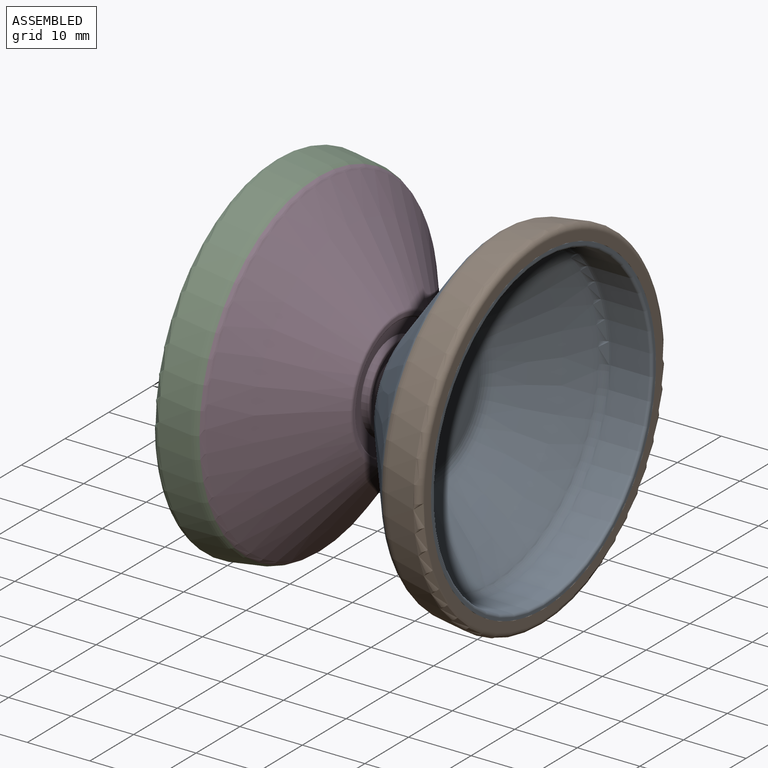
[diagram: assembled view]
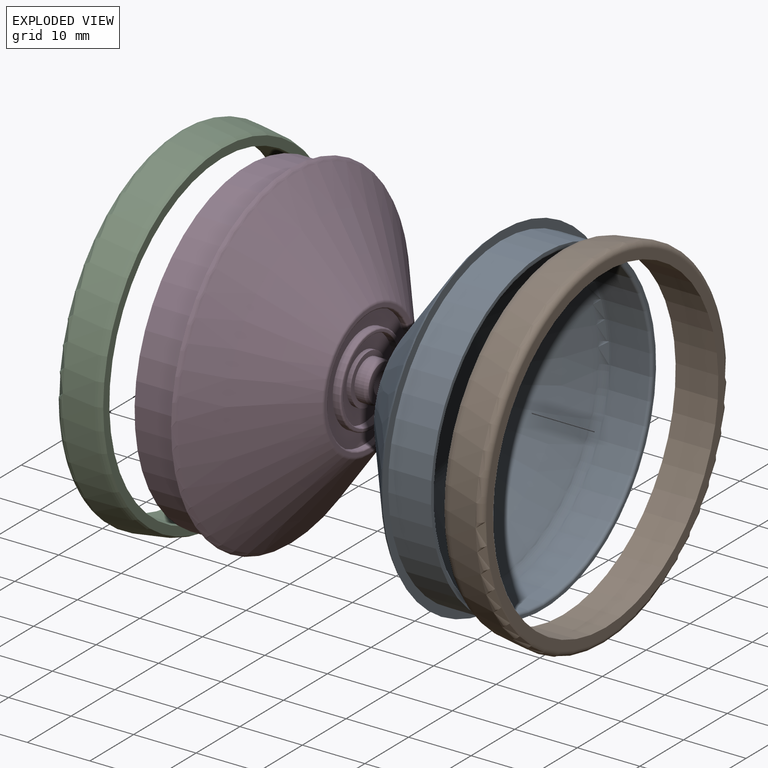
[diagram: exploded view]
GUIDED TOUR — MATED ASSEMBLY (Onshape document 5a9b9435372ab78102ca49b9, AutoMate assembly 5a9b9435372ab78102ca49b9_69f831226bb6e283e41c74c1_a57fb36722813cca9c23379e_default)

This assembly has 4 components, labeled P0..P3 below (a component is one placed occurrence of a part; the same part can appear more than once), held together by 3 mates. A mate is a constraint between two components; its type names the relative motion it leaves free:
  FASTENED — locks the two components together rigidly (no relative motion),
  REVOLUTE — leaves rotation about the listed axis free (a hinge).
Axis/direction vectors are unit vectors and 'through' points are millimeter coordinates, both in the assembly's world frame.

MATES
  1. REVOLUTE "Revolute 2": P1 <-> P0, axis (1.000, 0.000, 0.000) through (63.01, 15.94, -5.77) mm
  2. FASTENED "Fastened 1": P2 <-> P3, direction (-1.000, 0.000, 0.000) through (26.95, 15.94, -5.77) mm
  3. REVOLUTE "Revolute 1": P0 <-> P3, axis (-1.000, 0.000, 0.000) through (44.92, 15.94, -5.77) mm

ASSEMBLY ORDER
  1. P0 — the base component [order heuristic]
  2. P1 [order heuristic]
  3. P3 [order heuristic]
  4. P2 [order heuristic]
Order-tag legend:
  [order heuristic] — this assembly is geometrically interlocked (no collision-free removal order exists), so components are listed in mate-graph order; insertion feasibility is not verified.

Of the 4 components, 4 carry the full construction recipe — the FeatureScript program that regenerates the part's solid from scratch; the rest are supplied as boundary geometry only.
Each toured component is shown spotlighted twice — in the assembled view, then in the exploded view, where a leader line traces a displaced component back to its assembled socket (saturated green if recipe-attached, orange if geometry-only; every other component desaturated gray) — followed by its recipe or geometry summary and the mates that hold it.
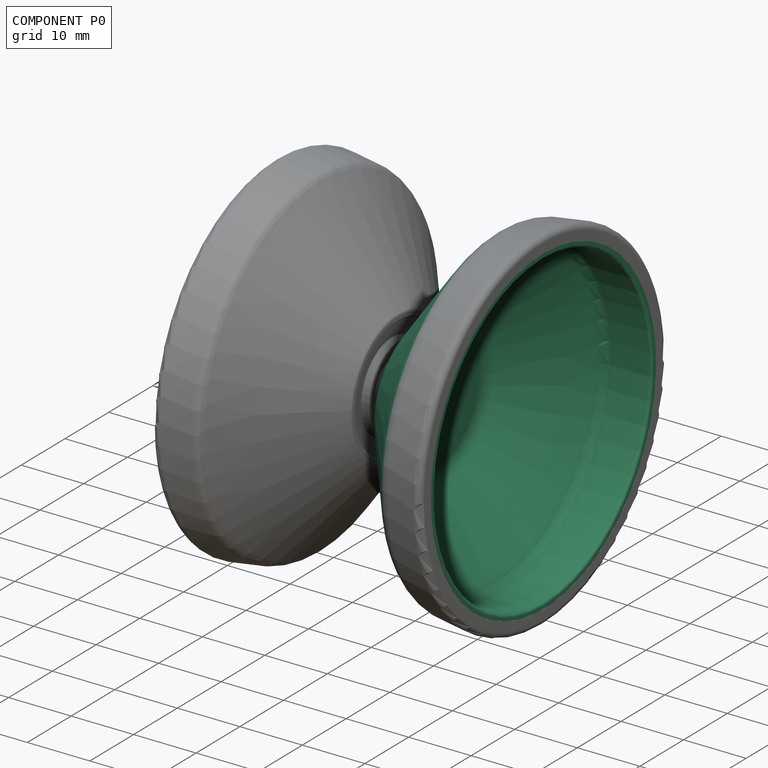
[diagram: component P0 — assembled]
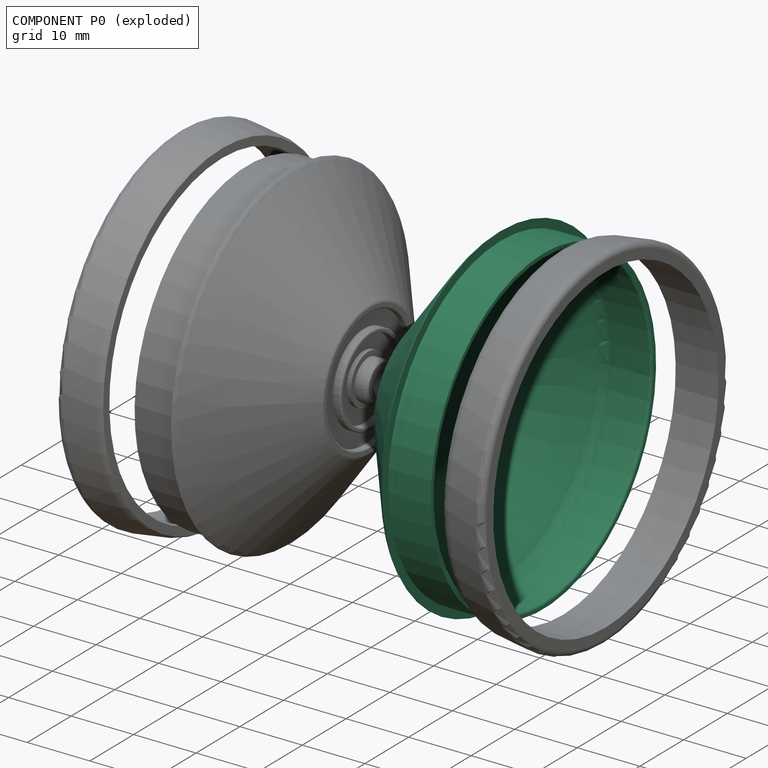
[diagram: component P0 — exploded]
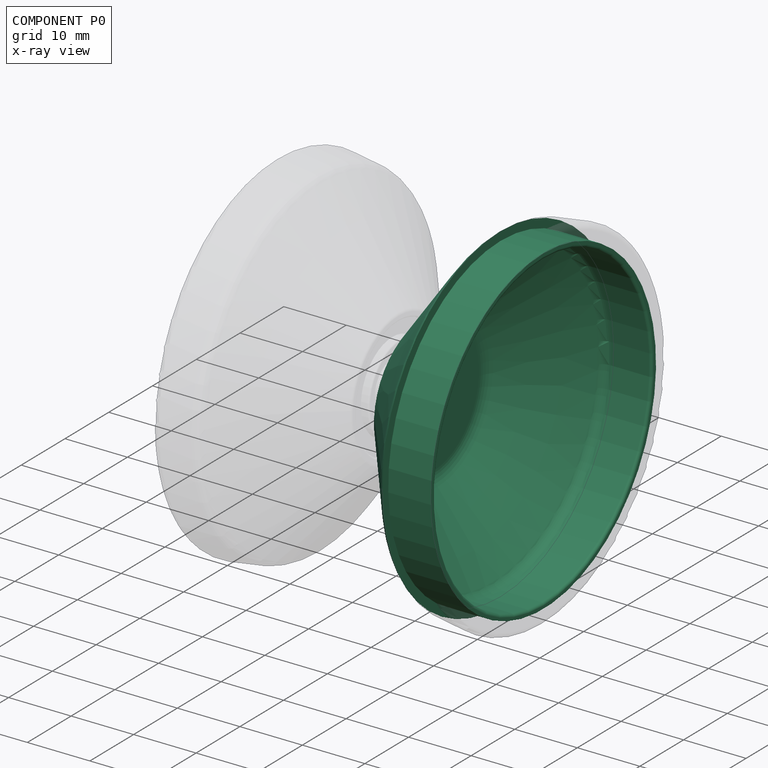
[diagram: component P0 — x-ray view]
COMPONENT P0 — recipe-attached (CADFS 00145918, mesh-verified: the recipe's output STEP matches this component's geometry to below the mesh-comparison resolution (tessellation chordal tolerance ~0.12 mm)).
Held by: REVOLUTE mate "Revolute 2" to P1; REVOLUTE mate "Revolute 1" to P3.
Construction recipe (FeatureScript — the CAD program that rebuilds this solid; sketch coordinates are in the units given by the * unit suffixes, e.g. mm):

FeatureScript 2279;
import(path : "onshape/std/geometry.fs", version : "2279.0");
import(path : "onshape/std/common.fs", version : "2279.0");
const mm = millimeter;
const VERTEX = EntityType.VERTEX;
const EDGE = EntityType.EDGE;
const FACE = EntityType.FACE;
const BODY = EntityType.BODY;
function v(x, y){return vector(x, y);}
function OD(order){return orderDisambiguation(order);}
function OSD(set){return originalSetDisambiguation(set);}
function TD(topology){return topologyDisambiguation(topology);}
function TDD(query){return trueDependencyDisambiguation(query);}
function sQuery(a, b, c) {return sketchEntityQuery(a, b, c);}

annotation { "Feature Type Name" : "Feature", "Feature Type Description" : "" }
export const myFeature = defineFeature(function(context is Context, id is Id, definition is map)
    precondition{}
    {
        {
            var Q0;
            Q0=qCreatedBy(makeId("Front.planeOp"),FACE);
            var sketch = newSketch(context, id + "F0", { "sketchPlane" : qUnion([Q0])});
            skArc(sketch, "E0", {"start": v(2.42, 9.65) * mm, "mid": v(2.6, 9.73) * mm, "end": v(2.67, 9.9) * mm});
            skArc(sketch, "E1", {"start": v(2.93, 6.9) * mm, "mid": v(2.85, 7.08) * mm, "end": v(2.67, 7.15) * mm});
            skArc(sketch, "E2", {"start": v(2.8, 6.5) * mm, "mid": v(2.9, 6.53) * mm, "end": v(2.93, 6.62) * mm});
            skLineSegment(sketch, "E3", {"start": v(1.67, 4) * mm, "end": v(1.67, 6.5) * mm});
            skLineSegment(sketch, "E4", {"start": v(4.49, 1.75) * mm, "end": v(4.49, 2.97) * mm});
            skLineSegment(sketch, "E5", {"start": v(2.37, 3.19) * mm, "end": v(2.37, 4) * mm});
            skLineSegment(sketch, "E6", {"start": v(4.37, 3.05) * mm, "end": v(3.88, 3.18) * mm});
            skLineSegment(sketch, "E7", {"start": v(2.37, 3.19) * mm, "end": v(3.84, 3.19) * mm});
            skLineSegment(sketch, "E8", {"start": v(1.67, 7.15) * mm, "end": v(2.67, 7.15) * mm});
            skArc(sketch, "E9", {"start": v(3.88, 3.18) * mm, "mid": v(3.86, 3.18) * mm, "end": v(3.84, 3.19) * mm});
            skLineSegment(sketch, "E10", {"start": v(4.49, 1.75) * mm, "end": v(1.65, 1.75) * mm});
            skLineSegment(sketch, "E11", {"start": v(1.65, 1.75) * mm, "end": v(1.58, 0) * mm});
            skArc(sketch, "E12", {"start": v(4.49, 2.97) * mm, "mid": v(4.44, 3.02) * mm, "end": v(4.37, 3.05) * mm});
            skLineSegment(sketch, "E13", {"start": v(1.58, 0) * mm, "end": v(0.8, 0) * mm});
            skLineSegment(sketch, "E14", {"start": v(-20.28, 0) * mm, "end": v(-20.28, 27.66) * mm});
            skLineSegment(sketch, "E15", {"start": v(-17.01, 25.73) * mm, "end": v(-10.18, 25.73) * mm});
            skLineSegment(sketch, "E16", {"start": v(1.67, 9.65) * mm, "end": v(1.67, 7.15) * mm});
            skLineSegment(sketch, "E17", {"start": v(1.67, 9.65) * mm, "end": v(2.42, 9.65) * mm});
            skLineSegment(sketch, "E18", {"start": v(2.93, 6.9) * mm, "end": v(2.93, 6.62) * mm});
            skLineSegment(sketch, "E19", {"start": v(2.8, 6.5) * mm, "end": v(1.67, 6.5) * mm});
            skLineSegment(sketch, "E20", {"start": v(1.67, 4) * mm, "end": v(2.37, 4) * mm});
            skPoint(sketch, "E21.visualSharp", {"position": v(-17.01, 25.44) * mm});
            skLineSegment(sketch, "E22", {"start": v(-11.26, 27.54) * mm, "end": v(-15.92, 28.2) * mm});
            skLineSegment(sketch, "E23", {"start": v(-17.01, 27.25) * mm, "end": v(-17.01, 25.73) * mm});
            skPoint(sketch, "E24.visualSharp", {"position": v(-17.01, 28.35) * mm});
            skArc(sketch, "E24.filletArc", {"start": v(-15.92, 28.2) * mm, "mid": v(-16.68, 27.97) * mm, "end": v(-17.01, 27.25) * mm});
            skPoint(sketch, "E25.visualSharp", {"position": v(-10.18, 27.4) * mm});
            skArc(sketch, "E25.filletArc", {"start": v(-9.54, 26.52) * mm, "mid": v(-10.3, 27.2) * mm, "end": v(-11.26, 27.54) * mm});
            skLineSegment(sketch, "E26", {"start": v(-10.18, 25.73) * mm, "end": v(-10.18, 27.14) * mm});
            skLineSegment(sketch, "E27", {"start": v(-10.5, 24.8) * mm, "end": v(-16.57, 24.8) * mm});
            skLineSegment(sketch, "E28", {"start": v(-17.01, 25.73) * mm, "end": v(-17.01, 25.25) * mm});
            skPoint(sketch, "E29.visualSharp", {"position": v(-17.01, 24.8) * mm});
            skArc(sketch, "E29.filletArc", {"start": v(-17.01, 25.25) * mm, "mid": v(-16.88, 24.93) * mm, "end": v(-16.57, 24.8) * mm});
            skLineSegment(sketch, "E30", {"start": v(2.67, 9.9) * mm, "end": v(2.67, 10.43) * mm});
            skLineSegment(sketch, "E31", {"start": v(2.53, 10.85) * mm, "end": v(-9.54, 26.52) * mm});
            skPoint(sketch, "E32.visualSharp", {"position": v(2.67, 10.67) * mm});
            skArc(sketch, "E32.filletArc", {"start": v(2.67, 10.43) * mm, "mid": v(2.64, 10.65) * mm, "end": v(2.53, 10.85) * mm});
            skLineSegment(sketch, "E33", {"start": v(-8.91, 24.03) * mm, "end": v(-0.08, 12.57) * mm});
            skLineSegment(sketch, "E34", {"start": v(0.63, 10.5) * mm, "end": v(0.63, 0) * mm});
            skPoint(sketch, "E34.endSnap0", {"position": v(1.18, 0) * mm});
            skLineSegment(sketch, "E35", {"start": v(0.63, 0) * mm, "end": v(0.8, 0) * mm});
            skPoint(sketch, "E36.visualSharp", {"position": v(0.63, 11.65) * mm});
            skArc(sketch, "E36.filletArc", {"start": v(0.63, 10.5) * mm, "mid": v(0.45, 11.6) * mm, "end": v(-0.08, 12.57) * mm});
            skPoint(sketch, "E37.visualSharp", {"position": v(-9.51, 24.8) * mm});
            skArc(sketch, "E37.filletArc", {"start": v(-8.91, 24.03) * mm, "mid": v(-9.61, 24.6) * mm, "end": v(-10.5, 24.8) * mm});
            skSolve(sketch);
        }
        {
            var Q0;
            Q0=makeQuery(id+"F0.imprint","IMPRINT",FACE,{"disambiguationData":[TD([[makeQuery(id+"F0.imprint","IMPRINT",EDGE,{"derivedFrom":sQuery(id+"F0.wireOp",EDGE,"E0")}),1.0]])]});
            var Q1;
            Q1=sQuery(id+"F0.wireOp",EDGE,"E13");
            revolve(context, id + "F1", {"entities" : qUnion([Q0]), "axis" : qUnion([Q1]), "revolveType" : RevolveType.FULL});
        }
    });
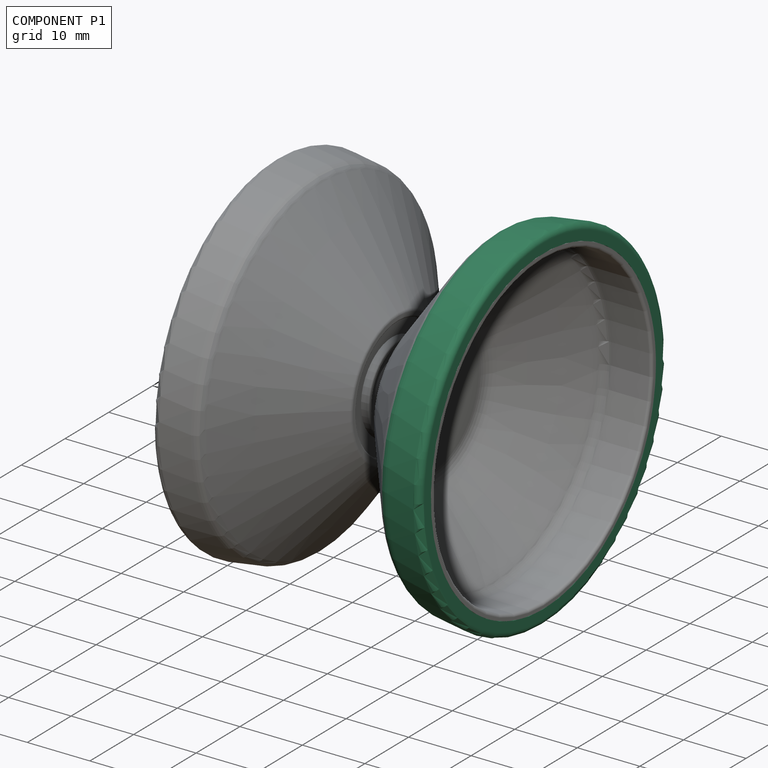
[diagram: component P1 — assembled]
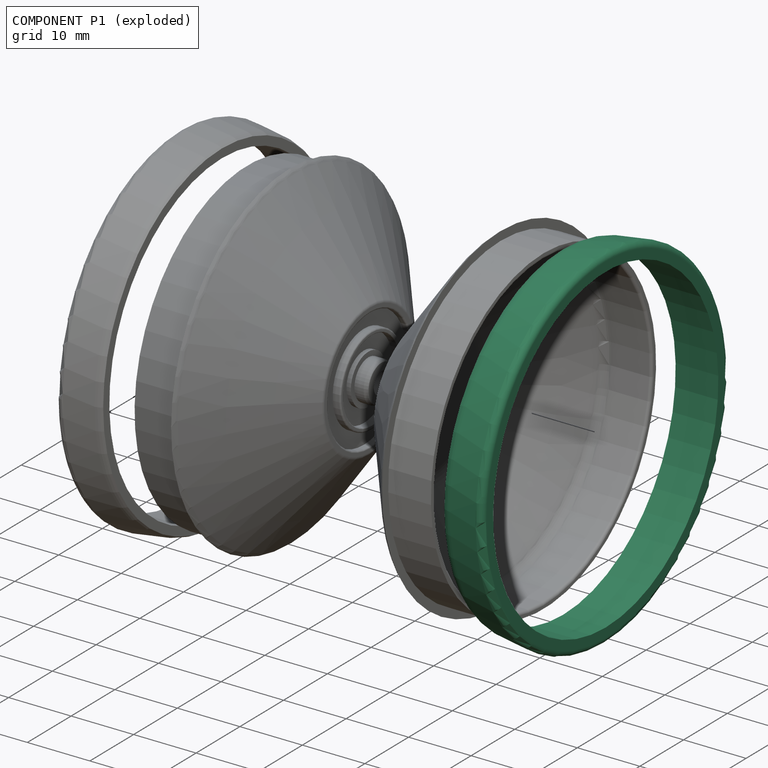
[diagram: component P1 — exploded]
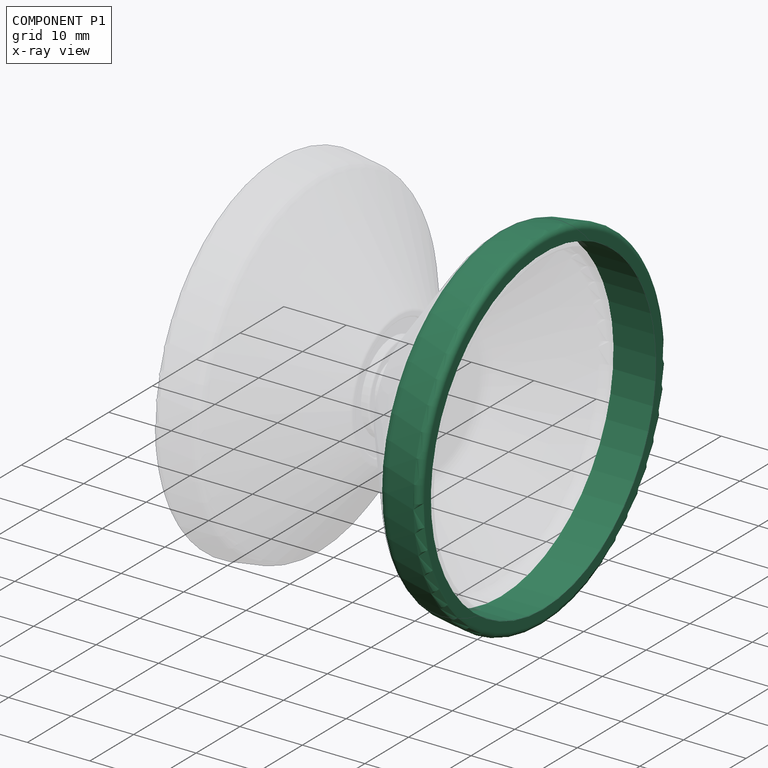
[diagram: component P1 — x-ray view]
COMPONENT P1 — recipe-attached (CADFS 00145919, mesh-verified: the recipe's output STEP matches this component's geometry to below the mesh-comparison resolution (tessellation chordal tolerance ~0.12 mm)).
Held by: REVOLUTE mate "Revolute 2" to P0.
Construction recipe (FeatureScript — the CAD program that rebuilds this solid; sketch coordinates are in the units given by the * unit suffixes, e.g. mm):

FeatureScript 2279;
import(path : "onshape/std/geometry.fs", version : "2279.0");
import(path : "onshape/std/common.fs", version : "2279.0");
const mm = millimeter;
const VERTEX = EntityType.VERTEX;
const EDGE = EntityType.EDGE;
const FACE = EntityType.FACE;
const BODY = EntityType.BODY;
function v(x, y){return vector(x, y);}
function OD(order){return orderDisambiguation(order);}
function OSD(set){return originalSetDisambiguation(set);}
function TD(topology){return topologyDisambiguation(topology);}
function TDD(query){return trueDependencyDisambiguation(query);}
function sQuery(a, b, c) {return sketchEntityQuery(a, b, c);}

annotation { "Feature Type Name" : "Feature", "Feature Type Description" : "" }
export const myFeature = defineFeature(function(context is Context, id is Id, definition is map)
    precondition{}
    {
        {
            var Q0;
            Q0=qCreatedBy(makeId("Front.planeOp"),FACE);
            var sketch = newSketch(context, id + "F0", { "sketchPlane" : qUnion([Q0])});
            skLineSegment(sketch, "E0", {"start": v(-17.01, 25.73) * mm, "end": v(-10.18, 25.73) * mm});
            skPoint(sketch, "E1.visualSharp", {"position": v(-17.01, 25.44) * mm});
            skLineSegment(sketch, "E2", {"start": v(-11.26, 27.54) * mm, "end": v(-15.92, 28.2) * mm});
            skLineSegment(sketch, "E3", {"start": v(-17.01, 27.25) * mm, "end": v(-17.01, 25.73) * mm});
            skPoint(sketch, "E4.visualSharp", {"position": v(-17.01, 28.35) * mm});
            skArc(sketch, "E4.filletArc", {"start": v(-15.92, 28.2) * mm, "mid": v(-16.68, 27.97) * mm, "end": v(-17.01, 27.25) * mm});
            skPoint(sketch, "E5.visualSharp", {"position": v(-10.18, 27.4) * mm});
            skArc(sketch, "E5.filletArc", {"start": v(-9.54, 26.52) * mm, "mid": v(-10.3, 27.2) * mm, "end": v(-11.26, 27.54) * mm});
            skLineSegment(sketch, "E6", {"start": v(-10.18, 25.73) * mm, "end": v(-10.18, 27.14) * mm});
            skLineSegment(sketch, "E7", {"start": v(-17.52, 0) * mm, "end": v(-4, 0) * mm});
            skSolve(sketch);
        }
        {
            var Q0;
            Q0=makeQuery(id+"F0.imprint","IMPRINT",FACE,{"disambiguationData":[TD([[makeQuery(id+"F0.imprint","IMPRINT",EDGE,{"derivedFrom":sQuery(id+"F0.wireOp",EDGE,"E0")}),1.0]])]});
            var Q1;
            Q1=sQuery(id+"F0.wireOp",EDGE,"E7");
            revolve(context, id + "F1", {"entities" : qUnion([Q0]), "axis" : qUnion([Q1]), "revolveType" : RevolveType.FULL});
        }
    });
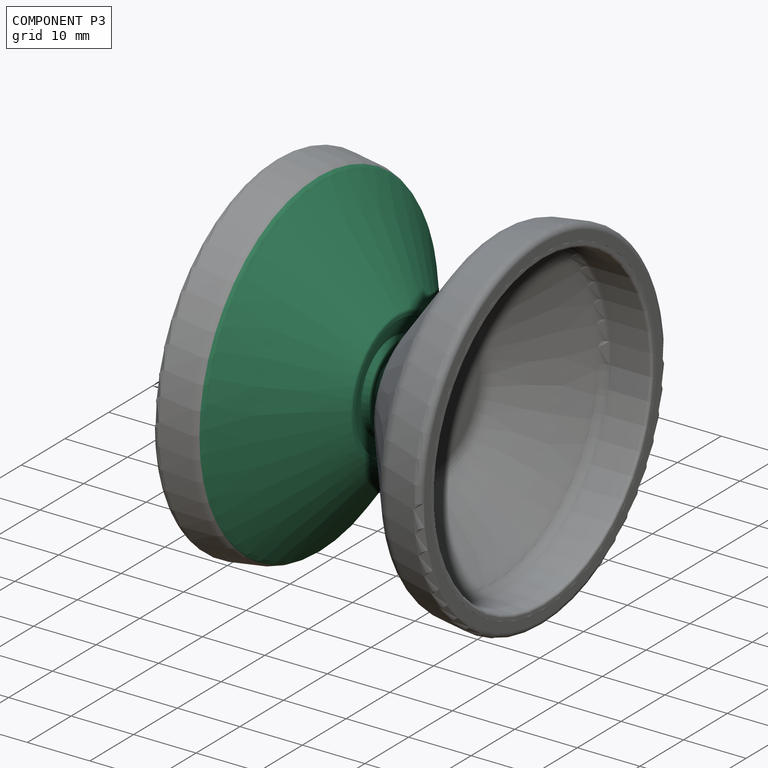
[diagram: component P3 — assembled]
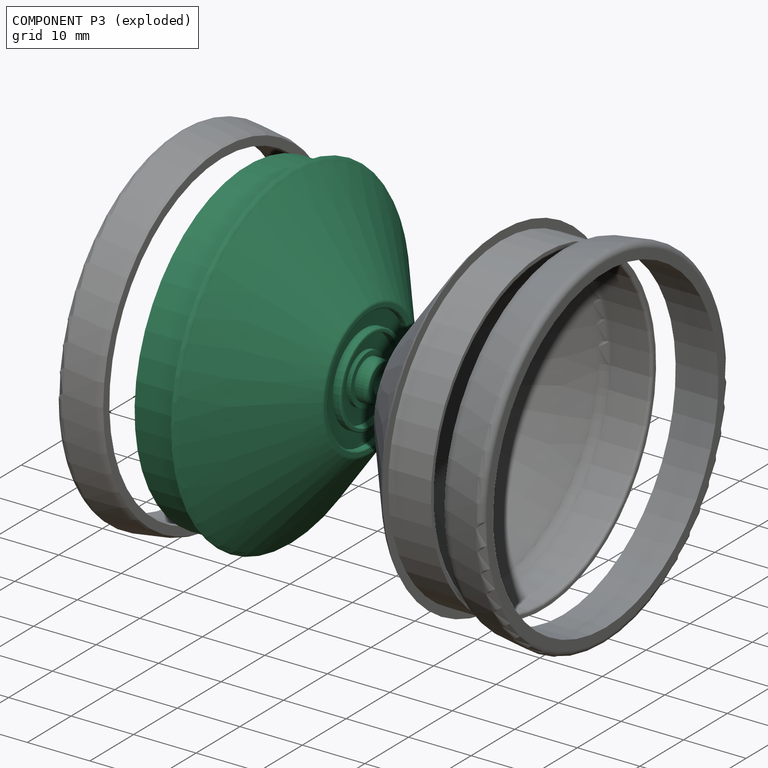
[diagram: component P3 — exploded]
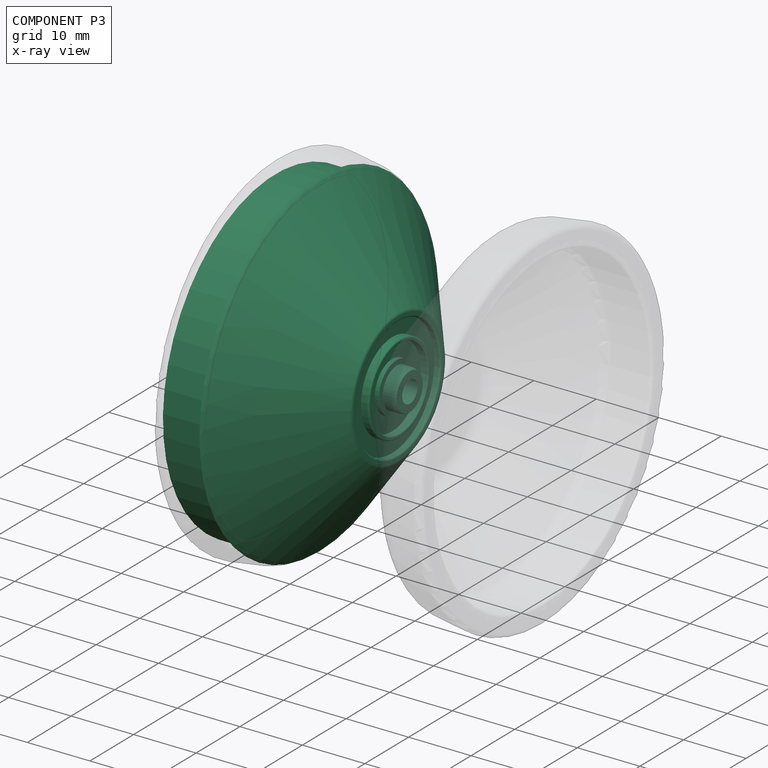
[diagram: component P3 — x-ray view]
COMPONENT P3 — same part as P0 (CADFS 00145918); its construction recipe is shown at P0.
Held by: FASTENED mate "Fastened 1" to P2; REVOLUTE mate "Revolute 1" to P0.
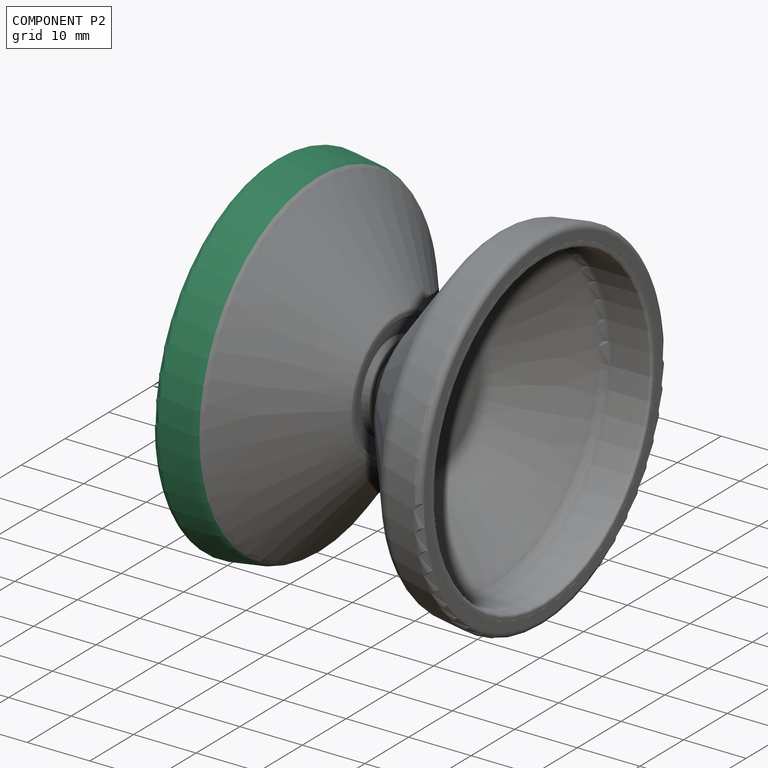
[diagram: component P2 — assembled]
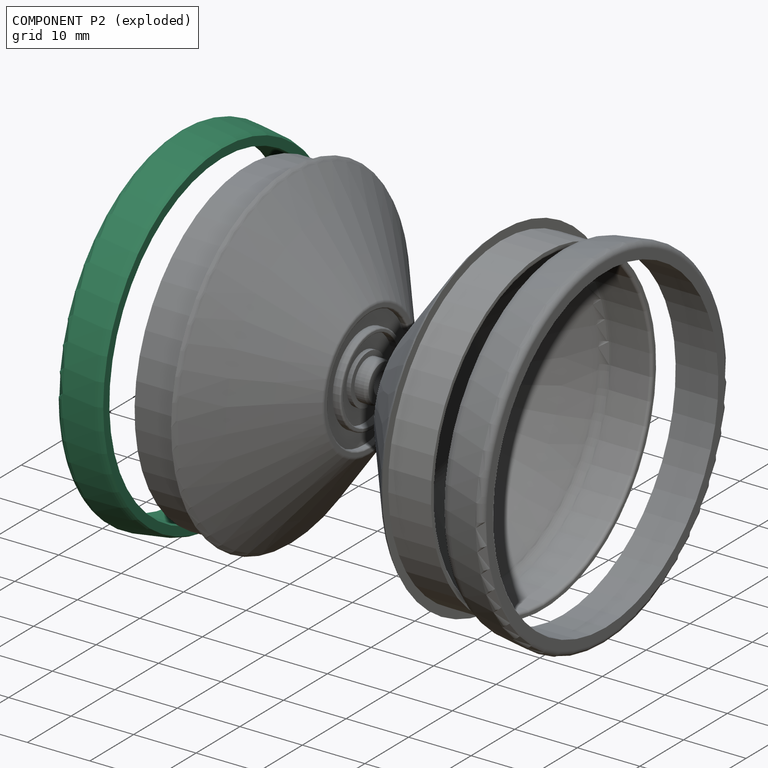
[diagram: component P2 — exploded]
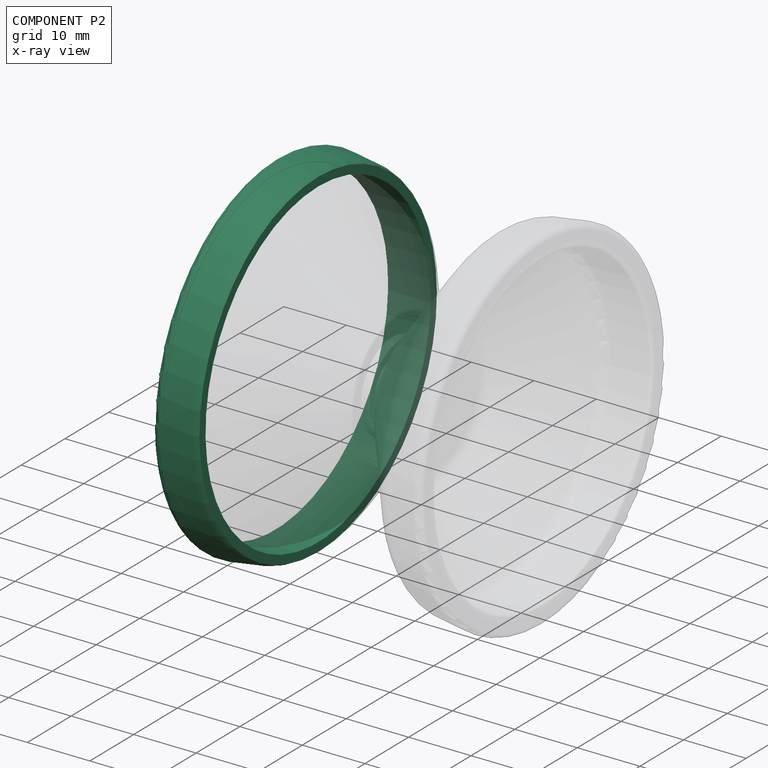
[diagram: component P2 — x-ray view]
COMPONENT P2 — same part as P1 (CADFS 00145919); its construction recipe is shown at P1.
Held by: FASTENED mate "Fastened 1" to P3.
PROVENANCE & LICENSES
Assembly (occurrences, transforms, mates, per-part STEP geometry): AutoMate dataset, Zenodo record 7776208, CC0.
Construction recipes: CADFS (HuggingFace VladPyatov/CADFS, CC-BY-4.0, layered over the ABC dataset), FeatureScript reconstruction programs keyed by ABC model id.
Join: ABC meta listings map ABC model id -> Onshape documentId; within a shared document, parts are matched by geometric signature (bounding-box dims + volume at 0.1% relative tolerance, exact B-rep face/solid counts).
Verification: 4 of this assembly's 4 components carry a recipe attachment, and every attachment is mesh-verified: the CADFS STEP and the AutoMate member STEP were compared as meshes in their shared local frame (symmetric sampled-point-to-mesh distance); worst across the 4 attachments: below the mesh-comparison resolution (tessellation chordal tolerance ~0.12 mm) on a 80 mm part.
Renders: orthographic iso camera (az 35 / el 25); the floor grid conveys scale (grid pitch printed in each image; no ruler). In the exploded view each component is displaced by its stored offset vector: the offsets alone carry the explosion direction (mate normal/axis signs are not orientation cues and do not encode it), and separation distances are assigned per mate-chain, not proportionally to assembly-order depth.
